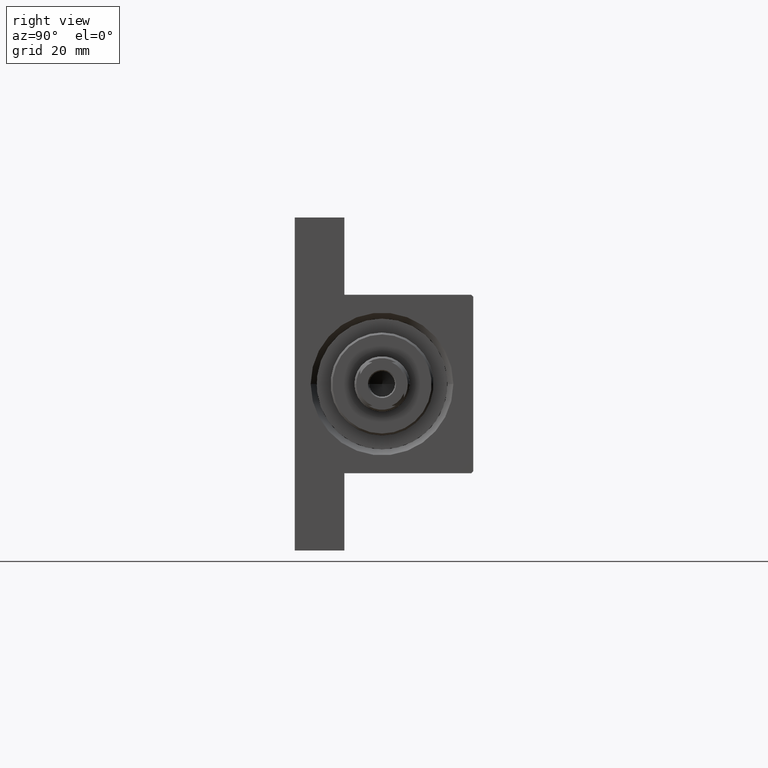
[diagram: clean part render]
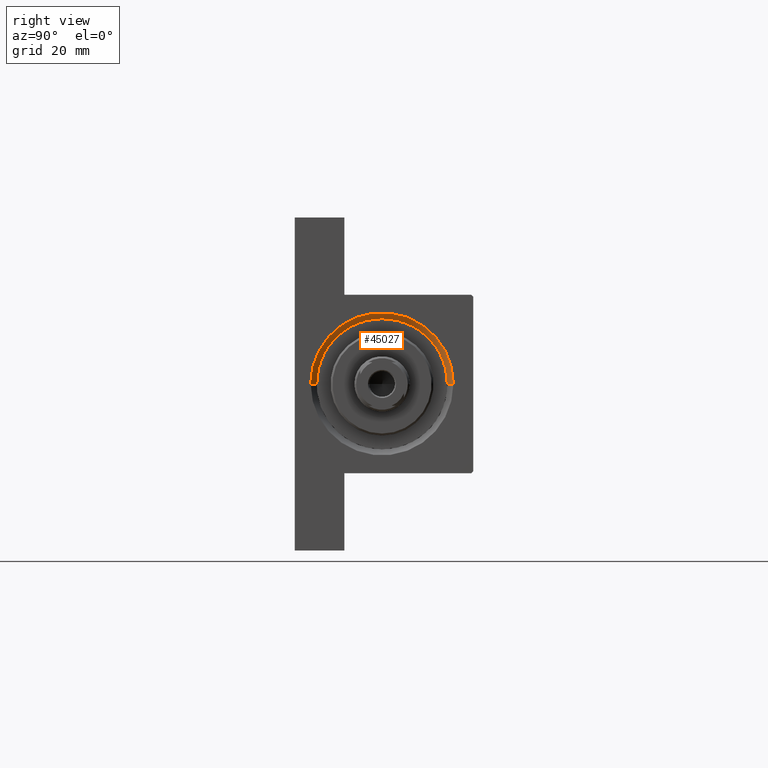
[diagram: same view with one face highlighted and labeled with its STEP entity id]
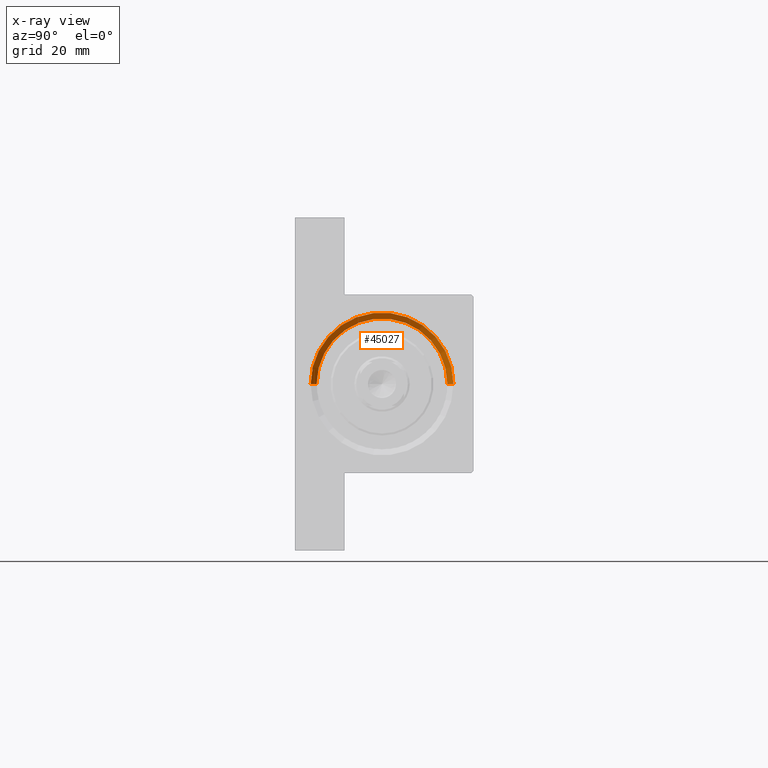
[diagram: x-ray of the same camera — body ghosted, the highlighted face saturated]
A machine part, right view. The second image highlights one B-rep face of the part: STEP entity #45027.
The next image is the same camera in x-ray: the body ghosted, the highlighted face saturated — about 0% of this face is hidden behind the body in this view.
In plain terms, the highlighted conical surface has half-angle 45 deg.
Its self-contained STEP definition (entity closure, byte-faithful):
#736 = EDGE_CURVE ( 'NONE', #10787, #40259, #6713, .T. ) ;
#3066 = DIRECTION ( 'NONE',  ( 0.7071067811865474617, 0.000000000000000000, -0.7071067811865474617 ) ) ;
#4949 = CARTESIAN_POINT ( 'NONE',  ( 121.5000000000000142, 0.000000000000000000, -0.4999999999999967804 ) ) ;
#5503 = ORIENTED_EDGE ( 'NONE', *, *, #736, .T. ) ;
#6690 = CARTESIAN_POINT ( 'NONE',  ( 121.5000000000000142, 0.000000000000000000, -16.99999999999999645 ) ) ;
#6713 = LINE ( 'NONE', #35831, #41754 ) ;
#7048 = VECTOR ( 'NONE', #3066, 1000.000000000000114 ) ;
#8419 = ORIENTED_EDGE ( 'NONE', *, *, #36161, .F. ) ;
#10200 = AXIS2_PLACEMENT_3D ( 'NONE', #30491, #30731, #45396 ) ;
#10629 = VERTEX_POINT ( 'NONE', #13075 ) ;
#10787 = VERTEX_POINT ( 'NONE', #37350 ) ;
#13075 = CARTESIAN_POINT ( 'NONE',  ( 123.0000000000000142, 0.000000000000000000, -18.50000000000000000 ) ) ;
#16847 = FACE_OUTER_BOUND ( 'NONE', #41678, .T. ) ;
#17081 = DIRECTION ( 'NONE',  ( 1.000000000000000000, 0.000000000000000000, 0.000000000000000000 ) ) ;
#19439 = CIRCLE ( 'NONE', #10200, 18.00000000000000355 ) ;
#19635 = DIRECTION ( 'NONE',  ( 1.000000000000000000, 0.000000000000000000, 0.000000000000000000 ) ) ;
#22872 = ORIENTED_EDGE ( 'NONE', *, *, #38359, .F. ) ;
#28157 = ORIENTED_EDGE ( 'NONE', *, *, #41448, .F. ) ;
#28370 = DIRECTION ( 'NONE',  ( 0.000000000000000000, 0.000000000000000000, -1.000000000000000000 ) ) ;
#30491 = CARTESIAN_POINT ( 'NONE',  ( 123.0000000000000142, 0.000000000000000000, -0.4999999999999967804 ) ) ;
#30731 = DIRECTION ( 'NONE',  ( -1.000000000000000000, 0.000000000000000000, -0.000000000000000000 ) ) ;
#35360 = CARTESIAN_POINT ( 'NONE',  ( 121.5000000000000142, 0.000000000000000000, -0.4999999999999967804 ) ) ;
#35831 = CARTESIAN_POINT ( 'NONE',  ( 121.5000000000000142, 2.020667218593133100E-15, 16.00000000000000355 ) ) ;
#36161 = EDGE_CURVE ( 'NONE', #45509, #10629, #36762, .T. ) ;
#36417 = AXIS2_PLACEMENT_3D ( 'NONE', #4949, #19635, #41519 ) ;
#36762 = LINE ( 'NONE', #6690, #7048 ) ;
#37350 = CARTESIAN_POINT ( 'NONE',  ( 121.5000000000000142, 2.020667218593133100E-15, 16.00000000000000355 ) ) ;
#38359 = EDGE_CURVE ( 'NONE', #10629, #40259, #19439, .T. ) ;
#38743 = DIRECTION ( 'NONE',  ( 0.7071067811865474617, 8.659560562354932858E-17, 0.7071067811865474617 ) ) ;
#40259 = VERTEX_POINT ( 'NONE', #44215 ) ;
#41130 = AXIS2_PLACEMENT_3D ( 'NONE', #35360, #17081, #28370 ) ;
#41448 = EDGE_CURVE ( 'NONE', #10787, #45509, #43299, .T. ) ;
#41519 = DIRECTION ( 'NONE',  ( 0.000000000000000000, 0.000000000000000000, 1.000000000000000000 ) ) ;
#41678 = EDGE_LOOP ( 'NONE', ( #28157, #5503, #22872, #8419 ) ) ;
#41754 = VECTOR ( 'NONE', #38743, 1000.000000000000114 ) ;
#42874 = CARTESIAN_POINT ( 'NONE',  ( 121.5000000000000142, 0.000000000000000000, -16.99999999999999645 ) ) ;
#43299 = CIRCLE ( 'NONE', #36417, 16.50000000000000000 ) ;
#44186 = CONICAL_SURFACE ( 'NONE', #41130, 16.50000000000000000, 0.7853981633974482790 ) ;
#44215 = CARTESIAN_POINT ( 'NONE',  ( 123.0000000000000142, 2.204364238465235822E-15, 17.50000000000000355 ) ) ;
#45027 = ADVANCED_FACE ( 'NONE', ( #16847 ), #44186, .F. ) ;
#45396 = DIRECTION ( 'NONE',  ( 0.000000000000000000, 0.000000000000000000, 1.000000000000000000 ) ) ;
#45509 = VERTEX_POINT ( 'NONE', #42874 ) ;